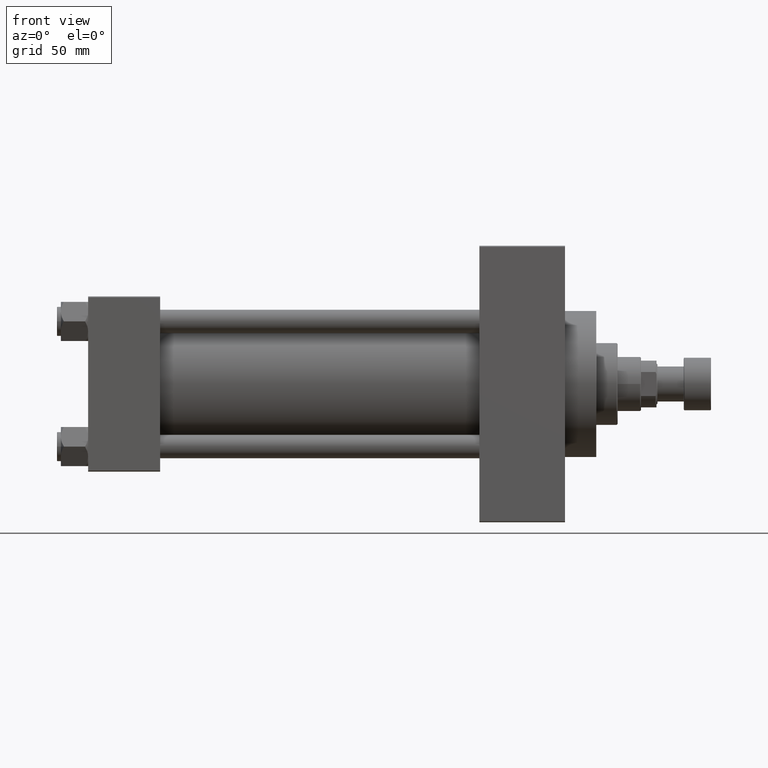
[diagram: clean part render]
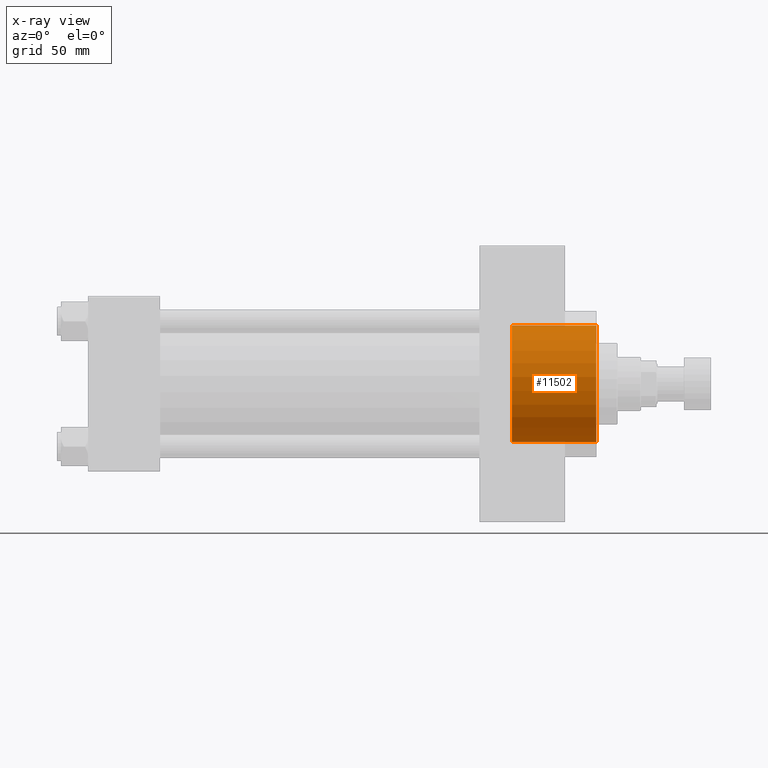
[diagram: x-ray — body ghosted, one internal face saturated and labeled with its STEP entity id]
A machine part, front view, then the same camera in x-ray: the body is ghosted and one INTERNAL B-rep face — a face not visible from any outside direction — is saturated and labeled: STEP entity #11502.
In plain terms, the highlighted cylindrical surface (partial cylindrical patch) has radius 30 mm, axis along (1, 0, 0).
Its self-contained STEP definition (entity closure, byte-faithful):
#238 = DIRECTION ( 'NONE',  ( 0.000000000000000000, 0.000000000000000000, -1.000000000000000000 ) ) ;
#2239 = CYLINDRICAL_SURFACE ( 'NONE', #14015, 30.00000000000000000 ) ;
#5620 = CARTESIAN_POINT ( 'NONE',  ( 261.0000000000000000, 3.673940397442059178E-15, 30.00000000000000000 ) ) ;
#6338 = CARTESIAN_POINT ( 'NONE',  ( 217.7400000000000091, 0.000000000000000000, 0.000000000000000000 ) ) ;
#8531 = CARTESIAN_POINT ( 'NONE',  ( 217.7400000000000091, 0.000000000000000000, 0.000000000000000000 ) ) ;
#8764 = DIRECTION ( 'NONE',  ( 1.000000000000000000, 0.000000000000000000, 0.000000000000000000 ) ) ;
#10376 = CARTESIAN_POINT ( 'NONE',  ( 261.0000000000000000, 0.000000000000000000, 0.000000000000000000 ) ) ;
#11502 = ADVANCED_FACE ( 'NONE', ( #39384 ), #2239, .F. ) ;
#11530 = VERTEX_POINT ( 'NONE', #5620 ) ;
#14015 = AXIS2_PLACEMENT_3D ( 'NONE', #6338, #16232, #35052 ) ;
#16232 = DIRECTION ( 'NONE',  ( 1.000000000000000000, -0.000000000000000000, -0.000000000000000000 ) ) ;
#18482 = EDGE_CURVE ( 'NONE', #22270, #11530, #31506, .T. ) ;
#18902 = DIRECTION ( 'NONE',  ( 0.000000000000000000, 0.000000000000000000, -1.000000000000000000 ) ) ;
#19791 = CARTESIAN_POINT ( 'NONE',  ( 217.7400000000000091, 3.673940397442059178E-15, 30.00000000000000000 ) ) ;
#19886 = EDGE_CURVE ( 'NONE', #11530, #21728, #28828, .T. ) ;
#20008 = ORIENTED_EDGE ( 'NONE', *, *, #19886, .T. ) ;
#21117 = CARTESIAN_POINT ( 'NONE',  ( 217.7400000000000091, 0.000000000000000000, -30.00000000000000000 ) ) ;
#21216 = CARTESIAN_POINT ( 'NONE',  ( 261.0000000000000000, 0.000000000000000000, -30.00000000000000000 ) ) ;
#21728 = VERTEX_POINT ( 'NONE', #21216 ) ;
#22270 = VERTEX_POINT ( 'NONE', #19791 ) ;
#23370 = ORIENTED_EDGE ( 'NONE', *, *, #41606, .F. ) ;
#24702 = AXIS2_PLACEMENT_3D ( 'NONE', #8531, #8764, #18902 ) ;
#27758 = CIRCLE ( 'NONE', #24702, 30.00000000000000000 ) ;
#28362 = DIRECTION ( 'NONE',  ( 1.000000000000000000, -0.000000000000000000, -0.000000000000000000 ) ) ;
#28828 = CIRCLE ( 'NONE', #38840, 30.00000000000000000 ) ;
#28926 = ORIENTED_EDGE ( 'NONE', *, *, #18482, .T. ) ;
#30401 = VECTOR ( 'NONE', #31986, 1000.000000000000000 ) ;
#30575 = VECTOR ( 'NONE', #28362, 1000.000000000000000 ) ;
#30631 = ORIENTED_EDGE ( 'NONE', *, *, #33526, .F. ) ;
#31506 = LINE ( 'NONE', #46203, #30401 ) ;
#31986 = DIRECTION ( 'NONE',  ( 1.000000000000000000, -0.000000000000000000, -0.000000000000000000 ) ) ;
#33526 = EDGE_CURVE ( 'NONE', #22270, #33822, #27758, .T. ) ;
#33822 = VERTEX_POINT ( 'NONE', #47329 ) ;
#35052 = DIRECTION ( 'NONE',  ( 0.000000000000000000, 0.000000000000000000, -1.000000000000000000 ) ) ;
#38840 = AXIS2_PLACEMENT_3D ( 'NONE', #10376, #43432, #238 ) ;
#39384 = FACE_OUTER_BOUND ( 'NONE', #46421, .T. ) ;
#41606 = EDGE_CURVE ( 'NONE', #33822, #21728, #46677, .T. ) ;
#43432 = DIRECTION ( 'NONE',  ( 1.000000000000000000, 0.000000000000000000, 0.000000000000000000 ) ) ;
#46203 = CARTESIAN_POINT ( 'NONE',  ( 217.7400000000000091, 3.673940397442059178E-15, 30.00000000000000000 ) ) ;
#46421 = EDGE_LOOP ( 'NONE', ( #30631, #28926, #20008, #23370 ) ) ;
#46677 = LINE ( 'NONE', #21117, #30575 ) ;
#47329 = CARTESIAN_POINT ( 'NONE',  ( 217.7400000000000091, 0.000000000000000000, -30.00000000000000000 ) ) ;